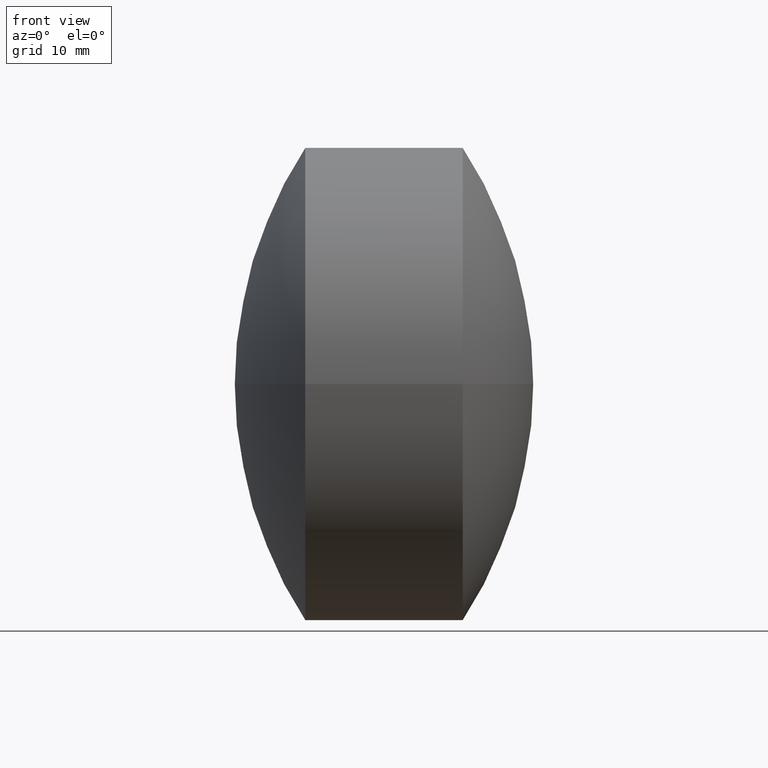
[diagram: clean part render]
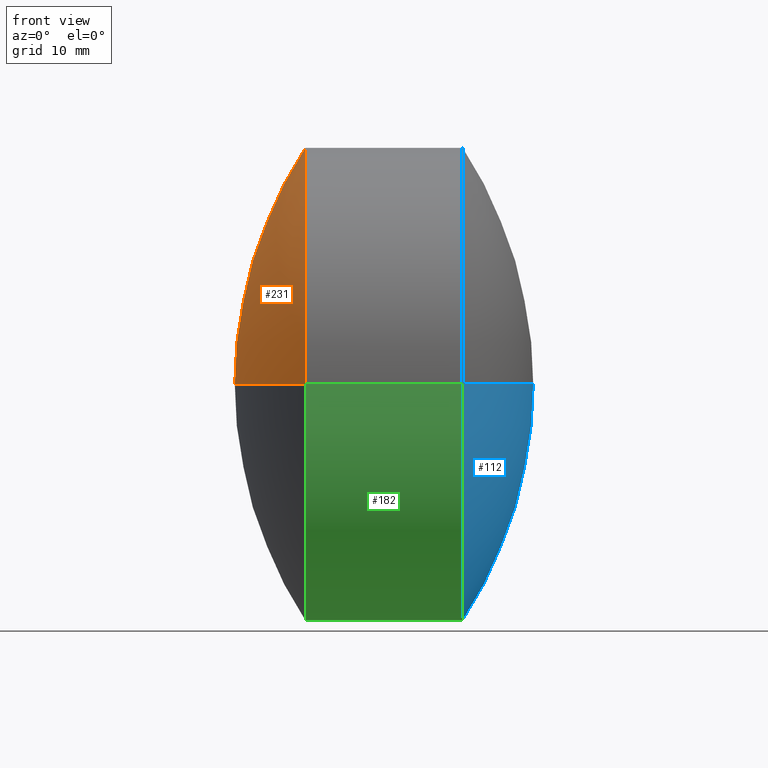
[diagram: same view with three faces highlighted in distinct colors, each labeled with its STEP entity id]
A machine part, front view with three faces highlighted in distinct colors.
Their STEP definitions:

[orange] entity #231 — the highlighted spherical surface has radius 63.8213 mm.
#7 = CARTESIAN_POINT ( 'NONE',  ( 226.6040127648179500, 133.9814138434225900, 0.0000000000000000000 ) ) ;
#10 = DIRECTION ( 'NONE',  ( 1.000000000000000000, 0.0000000000000000000, 0.0000000000000000000 ) ) ;
#14 = DIRECTION ( 'NONE',  ( 1.739581850205358500E-015, 1.000000000000000000, 0.0000000000000000000 ) ) ;
#21 = VERTEX_POINT ( 'NONE', #152 ) ;
#22 = SPHERICAL_SURFACE ( 'NONE', #169, 63.82125822329626200 ) ;
#36 = CARTESIAN_POINT ( 'NONE',  ( 279.9721024927130800, 133.9814138434225000, 0.0000000000000000000 ) ) ;
#39 = FACE_OUTER_BOUND ( 'NONE', #142, .T. ) ;
#52 = EDGE_CURVE ( 'NONE', #217, #21, #179, .T. ) ;
#55 = ORIENTED_EDGE ( 'NONE', *, *, #199, .T. ) ;
#69 = AXIS2_PLACEMENT_3D ( 'NONE', #275, #296, #297 ) ;
#87 = ORIENTED_EDGE ( 'NONE', *, *, #52, .T. ) ;
#96 = AXIS2_PLACEMENT_3D ( 'NONE', #36, #202, #10 ) ;
#99 = DIRECTION ( 'NONE',  ( -1.000000000000000000, 1.772925823926328100E-015, -0.0000000000000000000 ) ) ;
#101 = CIRCLE ( 'NONE', #96, 63.82125822329626200 ) ;
#124 = CIRCLE ( 'NONE', #69, 63.82125822329626200 ) ;
#125 = CARTESIAN_POINT ( 'NONE',  ( 216.1508442694168400, 133.9814138434226200, 0.0000000000000000000 ) ) ;
#141 = AXIS2_PLACEMENT_3D ( 'NONE', #7, #99, #194 ) ;
#142 = EDGE_LOOP ( 'NONE', ( #260, #87, #55 ) ) ;
#145 = VERTEX_POINT ( 'NONE', #125 ) ;
#152 = CARTESIAN_POINT ( 'NONE',  ( 226.6040127648180100, 168.9814138434225300, 0.0000000000000000000 ) ) ;
#159 = DIRECTION ( 'NONE',  ( 0.0000000000000000000, 0.0000000000000000000, -1.000000000000000000 ) ) ;
#169 = AXIS2_PLACEMENT_3D ( 'NONE', #195, #159, #14 ) ;
#178 = CARTESIAN_POINT ( 'NONE',  ( 226.6040127648179000, 98.98141384342262900, -4.286263797015731000E-015 ) ) ;
#179 = CIRCLE ( 'NONE', #141, 35.00000000000002800 ) ;
#180 = EDGE_CURVE ( 'NONE', #217, #145, #124, .T. ) ;
#194 = DIRECTION ( 'NONE',  ( -1.586032892321650900E-015, -1.000000000000000000, 0.0000000000000000000 ) ) ;
#195 = CARTESIAN_POINT ( 'NONE',  ( 279.9721024927130800, 133.9814138434225000, 0.0000000000000000000 ) ) ;
#199 = EDGE_CURVE ( 'NONE', #21, #145, #101, .T. ) ;
#202 = DIRECTION ( 'NONE',  ( 0.0000000000000000000, 0.0000000000000000000, 1.000000000000000000 ) ) ;
#217 = VERTEX_POINT ( 'NONE', #178 ) ;
#231 = ADVANCED_FACE ( 'NONE', ( #39 ), #22, .T. ) ;
#260 = ORIENTED_EDGE ( 'NONE', *, *, #180, .F. ) ;
#275 = CARTESIAN_POINT ( 'NONE',  ( 279.9721024927130800, 133.9814138434225000, 0.0000000000000000000 ) ) ;
#296 = DIRECTION ( 'NONE',  ( 2.171207935397061500E-031, 1.224646799147353200E-016, -1.000000000000000000 ) ) ;
#297 = DIRECTION ( 'NONE',  ( 0.0000000000000000000, 1.000000000000000000, 1.224646799147353200E-016 ) ) ;

[blue] entity #112 — the highlighted spherical surface has radius 63.8213 mm.
#1 = CIRCLE ( 'NONE', #280, 63.82125822329528800 ) ;
#4 = FACE_OUTER_BOUND ( 'NONE', #190, .T. ) ;
#29 = DIRECTION ( 'NONE',  ( -1.000000000000000000, 1.772925823926328100E-015, -0.0000000000000000000 ) ) ;
#35 = EDGE_CURVE ( 'NONE', #213, #155, #304, .T. ) ;
#49 = DIRECTION ( 'NONE',  ( 1.739581850205384900E-015, 1.000000000000000000, 0.0000000000000000000 ) ) ;
#51 = CARTESIAN_POINT ( 'NONE',  ( 196.5691230369240500, 133.9814138434226400, 0.0000000000000000000 ) ) ;
#67 = VERTEX_POINT ( 'NONE', #243 ) ;
#76 = ORIENTED_EDGE ( 'NONE', *, *, #93, .F. ) ;
#77 = DIRECTION ( 'NONE',  ( 2.171207935397061500E-031, 1.224646799147353200E-016, -1.000000000000000000 ) ) ;
#93 = EDGE_CURVE ( 'NONE', #67, #155, #189, .T. ) ;
#107 = ORIENTED_EDGE ( 'NONE', *, *, #35, .T. ) ;
#112 = ADVANCED_FACE ( 'NONE', ( #4 ), #255, .T. ) ;
#126 = EDGE_CURVE ( 'NONE', #213, #67, #1, .T. ) ;
#128 = DIRECTION ( 'NONE',  ( 0.0000000000000000000, 0.0000000000000000000, 1.000000000000000000 ) ) ;
#155 = VERTEX_POINT ( 'NONE', #218 ) ;
#163 = ORIENTED_EDGE ( 'NONE', *, *, #126, .F. ) ;
#174 = DIRECTION ( 'NONE',  ( 0.0000000000000000000, 0.0000000000000000000, -1.000000000000000000 ) ) ;
#177 = DIRECTION ( 'NONE',  ( 1.000000000000000000, 0.0000000000000000000, 0.0000000000000000000 ) ) ;
#189 = CIRCLE ( 'NONE', #191, 35.00000000000005700 ) ;
#190 = EDGE_LOOP ( 'NONE', ( #163, #107, #76 ) ) ;
#191 = AXIS2_PLACEMENT_3D ( 'NONE', #273, #29, #289 ) ;
#207 = AXIS2_PLACEMENT_3D ( 'NONE', #51, #77, #238 ) ;
#213 = VERTEX_POINT ( 'NONE', #298 ) ;
#218 = CARTESIAN_POINT ( 'NONE',  ( 249.9372127648178700, 98.98141384342245900, -4.286263797015745200E-015 ) ) ;
#221 = AXIS2_PLACEMENT_3D ( 'NONE', #292, #174, #49 ) ;
#238 = DIRECTION ( 'NONE',  ( 0.0000000000000000000, 1.000000000000000000, 1.224646799147353500E-016 ) ) ;
#243 = CARTESIAN_POINT ( 'NONE',  ( 249.9372127648179900, 168.9814138434226400, 0.0000000000000000000 ) ) ;
#245 = CARTESIAN_POINT ( 'NONE',  ( 196.5691230369240500, 133.9814138434226400, 0.0000000000000000000 ) ) ;
#255 = SPHERICAL_SURFACE ( 'NONE', #221, 63.82125822329528800 ) ;
#273 = CARTESIAN_POINT ( 'NONE',  ( 249.9372127648179300, 133.9814138434225600, 0.0000000000000000000 ) ) ;
#280 = AXIS2_PLACEMENT_3D ( 'NONE', #245, #128, #177 ) ;
#289 = DIRECTION ( 'NONE',  ( -1.586032892321649700E-015, -1.000000000000000000, 0.0000000000000000000 ) ) ;
#292 = CARTESIAN_POINT ( 'NONE',  ( 196.5691230369240500, 133.9814138434226400, 0.0000000000000000000 ) ) ;
#298 = CARTESIAN_POINT ( 'NONE',  ( 260.3903812602193300, 133.9814138434225300, 0.0000000000000000000 ) ) ;
#304 = CIRCLE ( 'NONE', #207, 63.82125822329528800 ) ;

[green] entity #182 — the highlighted cylindrical surface (partial cylindrical patch) has radius 35 mm, axis along (-1, 0, -0).
#18 = AXIS2_PLACEMENT_3D ( 'NONE', #131, #103, #158 ) ;
#21 = VERTEX_POINT ( 'NONE', #152 ) ;
#29 = DIRECTION ( 'NONE',  ( -1.000000000000000000, 1.772925823926328100E-015, -0.0000000000000000000 ) ) ;
#33 = CARTESIAN_POINT ( 'NONE',  ( 198.4294383779661900, 98.98141384342258700, 0.0000000000000000000 ) ) ;
#50 = CARTESIAN_POINT ( 'NONE',  ( 226.6040127648179500, 133.9814138434225900, 0.0000000000000000000 ) ) ;
#63 = VECTOR ( 'NONE', #201, 1000.000000000000000 ) ;
#67 = VERTEX_POINT ( 'NONE', #243 ) ;
#71 = LINE ( 'NONE', #241, #63 ) ;
#74 = ORIENTED_EDGE ( 'NONE', *, *, #93, .T. ) ;
#84 = AXIS2_PLACEMENT_3D ( 'NONE', #50, #251, #271 ) ;
#93 = EDGE_CURVE ( 'NONE', #67, #155, #189, .T. ) ;
#98 = ORIENTED_EDGE ( 'NONE', *, *, #246, .T. ) ;
#103 = DIRECTION ( 'NONE',  ( -1.000000000000000000, 1.772925823926328100E-015, -0.0000000000000000000 ) ) ;
#120 = CIRCLE ( 'NONE', #84, 35.00000000000002800 ) ;
#131 = CARTESIAN_POINT ( 'NONE',  ( 198.4294383779662500, 133.9814138434226400, 0.0000000000000000000 ) ) ;
#147 = FACE_OUTER_BOUND ( 'NONE', #186, .T. ) ;
#152 = CARTESIAN_POINT ( 'NONE',  ( 226.6040127648180100, 168.9814138434225300, 0.0000000000000000000 ) ) ;
#155 = VERTEX_POINT ( 'NONE', #218 ) ;
#158 = DIRECTION ( 'NONE',  ( -1.586032892321650300E-015, -1.000000000000000000, 0.0000000000000000000 ) ) ;
#164 = EDGE_CURVE ( 'NONE', #67, #21, #71, .T. ) ;
#168 = LINE ( 'NONE', #33, #209 ) ;
#175 = DIRECTION ( 'NONE',  ( -1.000000000000000000, 1.772925823926328100E-015, -0.0000000000000000000 ) ) ;
#178 = CARTESIAN_POINT ( 'NONE',  ( 226.6040127648179000, 98.98141384342262900, -4.286263797015731000E-015 ) ) ;
#182 = ADVANCED_FACE ( 'NONE', ( #147 ), #250, .T. ) ;
#185 = EDGE_CURVE ( 'NONE', #21, #217, #120, .T. ) ;
#186 = EDGE_LOOP ( 'NONE', ( #205, #74, #98, #212 ) ) ;
#189 = CIRCLE ( 'NONE', #191, 35.00000000000005700 ) ;
#191 = AXIS2_PLACEMENT_3D ( 'NONE', #273, #29, #289 ) ;
#201 = DIRECTION ( 'NONE',  ( -1.000000000000000000, 1.772925823926328100E-015, -0.0000000000000000000 ) ) ;
#205 = ORIENTED_EDGE ( 'NONE', *, *, #164, .F. ) ;
#209 = VECTOR ( 'NONE', #175, 1000.000000000000000 ) ;
#212 = ORIENTED_EDGE ( 'NONE', *, *, #185, .F. ) ;
#217 = VERTEX_POINT ( 'NONE', #178 ) ;
#218 = CARTESIAN_POINT ( 'NONE',  ( 249.9372127648178700, 98.98141384342245900, -4.286263797015745200E-015 ) ) ;
#241 = CARTESIAN_POINT ( 'NONE',  ( 198.4294383779663100, 168.9814138434227000, 4.286263797015741200E-015 ) ) ;
#243 = CARTESIAN_POINT ( 'NONE',  ( 249.9372127648179900, 168.9814138434226400, 0.0000000000000000000 ) ) ;
#246 = EDGE_CURVE ( 'NONE', #155, #217, #168, .T. ) ;
#250 = CYLINDRICAL_SURFACE ( 'NONE', #18, 35.00000000000004300 ) ;
#251 = DIRECTION ( 'NONE',  ( -1.000000000000000000, 1.772925823926328100E-015, -0.0000000000000000000 ) ) ;
#271 = DIRECTION ( 'NONE',  ( -1.586032892321650900E-015, -1.000000000000000000, 0.0000000000000000000 ) ) ;
#273 = CARTESIAN_POINT ( 'NONE',  ( 249.9372127648179300, 133.9814138434225600, 0.0000000000000000000 ) ) ;
#289 = DIRECTION ( 'NONE',  ( -1.586032892321649700E-015, -1.000000000000000000, 0.0000000000000000000 ) ) ;